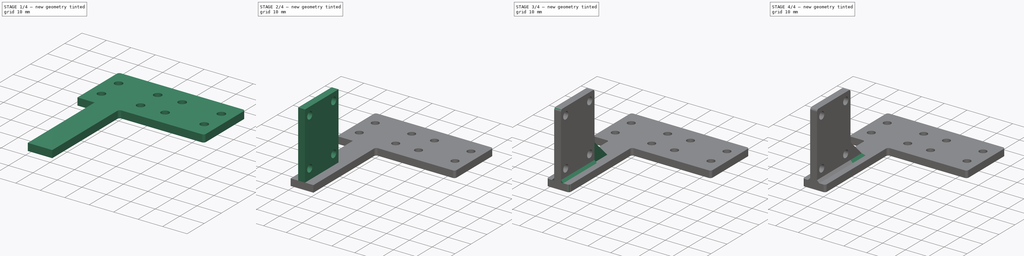
[diagram: build sequence overview — one tinted view per stage of 4, left to right]
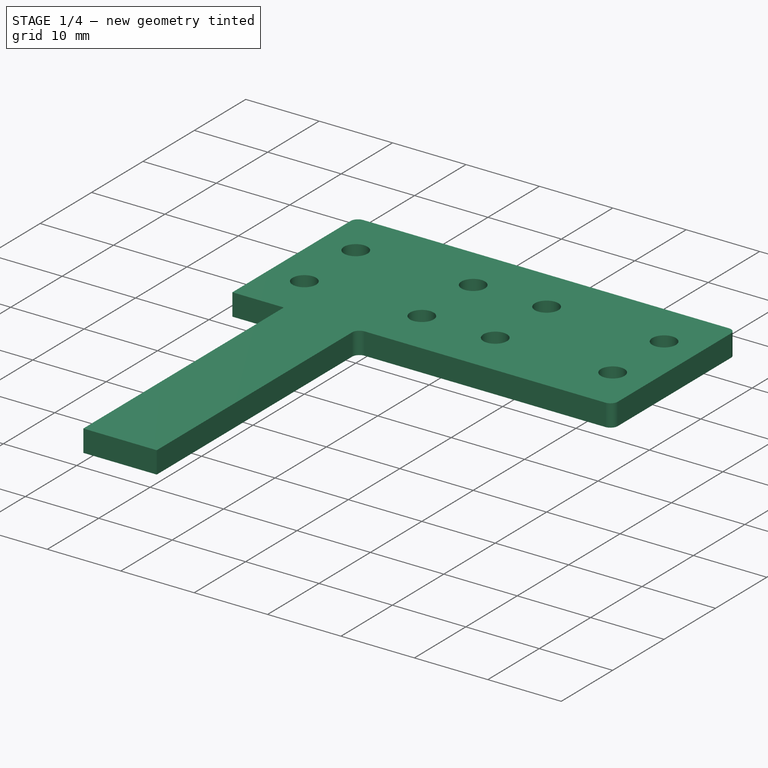
[diagram: stage 1 of 4 — iso view after this stage's code; geometry added in this stage tinted green]
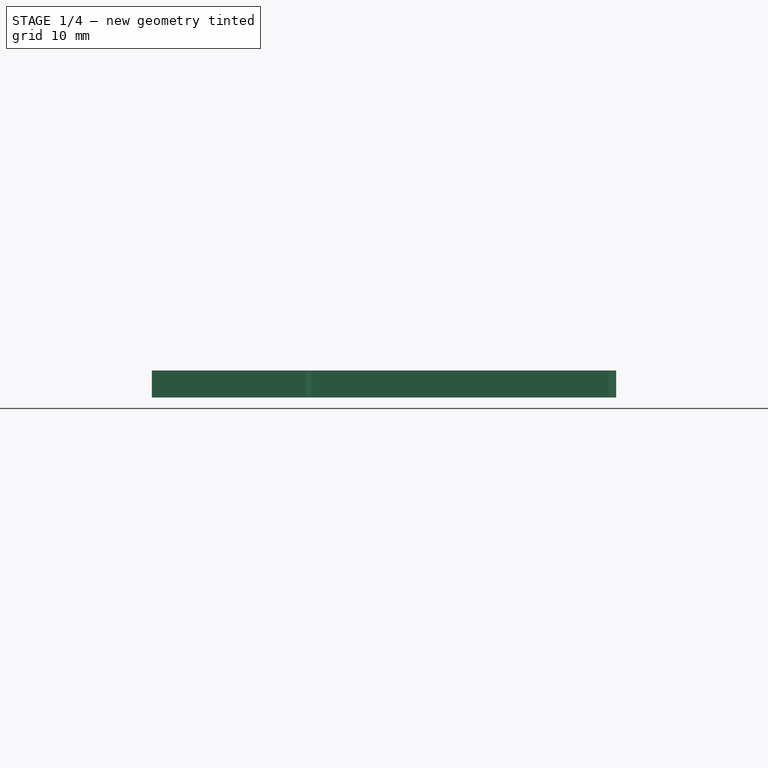
[diagram: stage 1 of 4 — front view after this stage's code; geometry added in this stage tinted green]
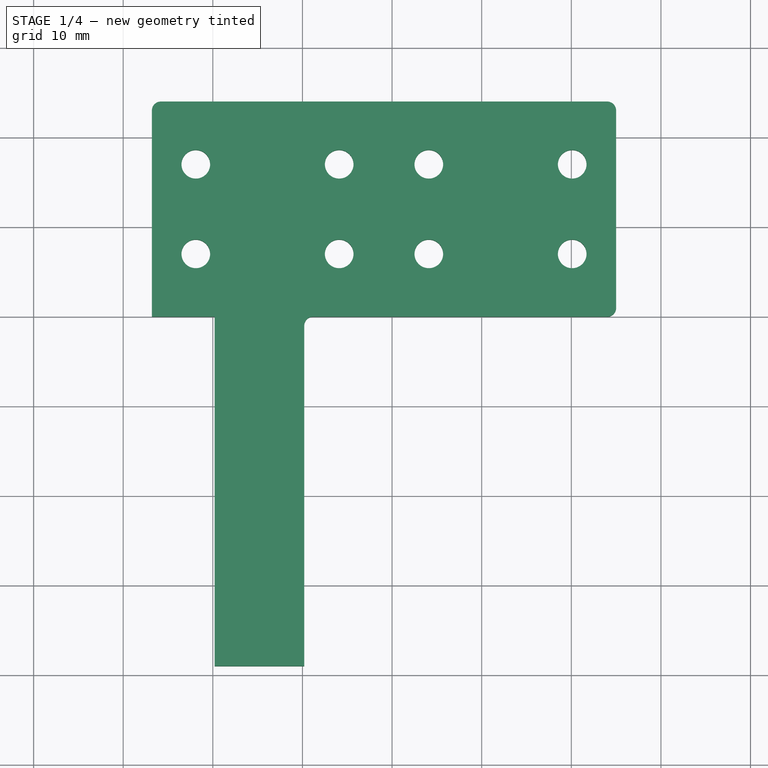
[diagram: stage 1 of 4 — top view after this stage's code; geometry added in this stage tinted green]
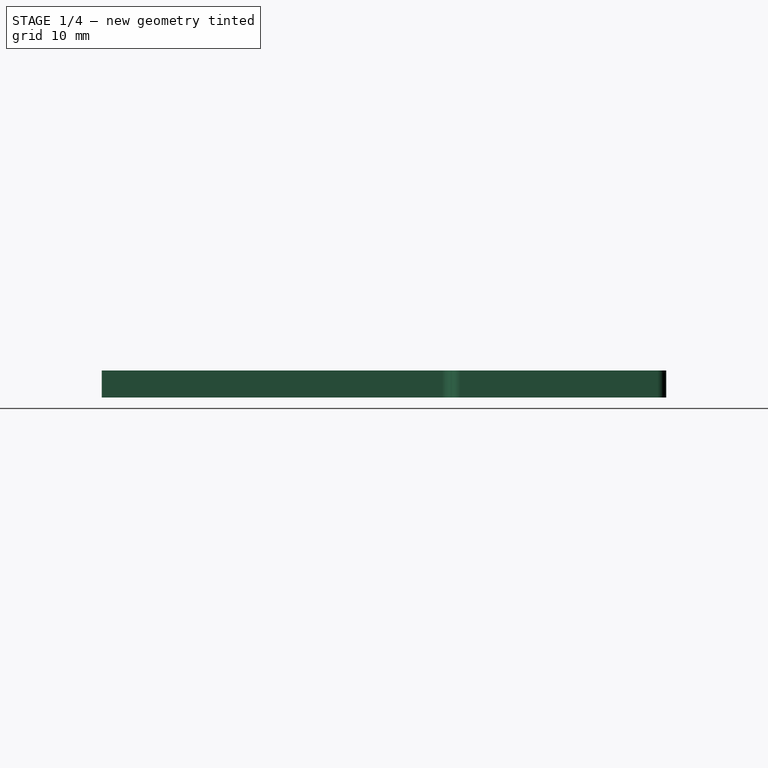
[diagram: stage 1 of 4 — right view after this stage's code; geometry added in this stage tinted green]
FCSTD DOCUMENT  (FreeCAD 0.19R24276 (Git))
Label: Clamp_holder_part4
License: All rights reserved
LicenseURL: http://en.wikipedia.org/wiki/All_rights_reserved
objects: Sketcher::SketchObject×5, PartDesign::Pad×4, PartDesign::Fillet×2, PartDesign::Chamfer×2, PartDesign::Pocket×1, PartDesign::Body×1
note: 24 computed .brp shape members not serialized (recipe doc carries the construction recipe); baked Part::Feature solids carry a one-line shape summary decoded from their .brp

FEATURE [Sketcher::SketchObject] Sketch
  FullyConstrained = false
  MapMode = 5
  Support = -> [XY_Plane]
  sketch-geometry (29):
    g0: LineSegment StartX=0 StartY=0 StartZ=0 EndX=25 EndY=0 EndZ=0
    g1: LineSegment StartX=25 StartY=0 StartZ=0 EndX=25 EndY=24 EndZ=0
    g2: LineSegment StartX=25 StartY=24 StartZ=0 EndX=0 EndY=24 EndZ=0
    g3: LineSegment StartX=0 StartY=24 StartZ=0 EndX=0 EndY=0 EndZ=0
    g4: Circle CenterX=4.1 CenterY=17 CenterZ=0 NormalX=0 NormalY=0 NormalZ=1 AngleXU=0 Radius=1.6
    g5: Circle CenterX=20.1 CenterY=17 CenterZ=0 NormalX=0 NormalY=0 NormalZ=1 AngleXU=0 Radius=1.6
    g6: Circle CenterX=4.1 CenterY=7 CenterZ=0 NormalX=0 NormalY=0 NormalZ=1 AngleXU=0 Radius=1.6
    g7: Circle CenterX=20.1 CenterY=7 CenterZ=0 NormalX=0 NormalY=0 NormalZ=1 AngleXU=0 Radius=1.6
    g8: LineSegment StartX=0 StartY=0 StartZ=0 EndX=0 EndY=24 EndZ=0
    g9: LineSegment StartX=-1.8 StartY=0 StartZ=0 EndX=-26.8 EndY=0 EndZ=0
    g10: LineSegment StartX=-26.8 StartY=0 StartZ=0 EndX=-26.8 EndY=24 EndZ=0
    g11: LineSegment StartX=-26.8 StartY=24 StartZ=0 EndX=-1.8 EndY=24 EndZ=0
    g12: LineSegment StartX=-1.8 StartY=24 StartZ=0 EndX=-1.8 EndY=0 EndZ=0
    g13: Circle CenterX=-5.9 CenterY=17 CenterZ=0 NormalX=0 NormalY=0 NormalZ=1 AngleXU=0 Radius=1.6
    g14: Circle CenterX=-21.9 CenterY=17 CenterZ=0 NormalX=0 NormalY=0 NormalZ=1 AngleXU=0 Radius=1.6
    g15: Circle CenterX=-5.9 CenterY=7 CenterZ=0 NormalX=0 NormalY=0 NormalZ=1 AngleXU=0 Radius=1.6
    g16: Circle CenterX=-21.9 CenterY=7 CenterZ=0 NormalX=0 NormalY=0 NormalZ=1 AngleXU=0 Radius=1.6
    g17: LineSegment StartX=-26.8 StartY=24 StartZ=0 EndX=25 EndY=24 EndZ=0
    g18: LineSegment StartX=25 StartY=0 StartZ=0 EndX=-26.8 EndY=0 EndZ=0
    g19: LineSegment StartX=-0.9 StartY=24 StartZ=0 EndX=-0.9 EndY=7 EndZ=0
    g20: LineSegment StartX=-26.8 StartY=0 StartZ=0 EndX=-9.8 EndY=0 EndZ=0
    g21: LineSegment StartX=-9.8 StartY=0 StartZ=0 EndX=-9.8 EndY=-39 EndZ=0
    g22: LineSegment StartX=-9.8 StartY=-39 StartZ=0 EndX=-26.8 EndY=-39 EndZ=0
    g23: LineSegment StartX=-26.8 StartY=-39 StartZ=0 EndX=-26.8 EndY=0 EndZ=0
    g24: LineSegment StartX=-19.8 StartY=-39 StartZ=0 EndX=-19.8 EndY=0 EndZ=0
    g25: LineSegment StartX=-9.8 StartY=0 StartZ=0 EndX=25 EndY=0 EndZ=0
    g26: LineSegment StartX=-9.8 StartY=-39 StartZ=0 EndX=-19.8 EndY=-39 EndZ=0
    g27: LineSegment StartX=-19.8 StartY=-39 StartZ=0 EndX=-19.8 EndY=0 EndZ=0
    g28: LineSegment StartX=-26.8 StartY=0 StartZ=0 EndX=-19.8 EndY=0 EndZ=0
  constraints (78):
    c: Coincident(g0,g1)
    c: Coincident(g1,g2)
    c: Coincident(g2,g3)
    c: Coincident(g3,g0)
    c: Horizontal(g0)
    c: Horizontal(g2)
    c: Vertical(g1)
    c: Vertical(g3)
    c: Coincident(g0,g-1)
    c: DistanceY(g3,g3) = 24
    c: DistanceX(g0,g0) = 25
    c: Equal(g6,g4)
    c: Equal(g6,g7)
    c: Equal(g6,g5)
    c: Vertical(g4,g6)
    c: DistanceY(g-1,g6) = 7
    c: DistanceY(g6,g4) = 10
    c: Horizontal(g6,g7)
    c: Vertical(g5,g7)
    c: DistanceY(g7,g5) = 10
    c: DistanceX(g6,g7) = 16
    c: DistanceX(g-1,g6) = 4.1
    c: Vertical(g8)
    c: Coincident(g9,g10)
    c: Coincident(g10,g11)
    c: Coincident(g11,g12)
    c: Coincident(g12,g9)
    c: Horizontal(g9)
    c: Horizontal(g11)
    c: Vertical(g10)
    c: Vertical(g12)
    c: Equal(g15,g13)
    c: Equal(g15,g16)
    c: DistanceX(g15,g9) = 4.1
    c: Vertical(g15,g13)
    c: Vertical(g16,g14)
    c: Horizontal(g16,g15)
    c: Horizontal(g15,g6)
    c: Horizontal(g14,g13)
    c: Horizontal(g13,g4)
    c: Equal(g13,g14)
    c: DistanceX(g15,g6) = 10
    c: DistanceX(g16,g15) = 16
    c: DistanceX(g9,g9) = 25
    c: Horizontal(g9,g0)
    c: Horizontal(g11,g2)
    c: Equal(g15,g6)
    c: Diameter(g6) = 3.2
    c: Coincident(g17,g10)
    c: Coincident(g17,g1)
    c: Coincident(g18,g1)
    c: Coincident(g18,g10)
    c: Vertical(g19)
    c: Symmetric(g15,g6,g19)
    c: PointOnObject(g19,g17)
    c: Coincident(g20,g21)
    c: Coincident(g21,g22)
    c: Coincident(g22,g23)
    c: Coincident(g23,g20)
    c: Horizontal(g20)
    c: Horizontal(g22)
    c: Vertical(g21)
    c: Vertical(g23)
    c: Coincident(g20,g10)
    c: DistanceY(g22,g10) = 63
    c: Vertical(g24)
    c: PointOnObject(g24,g22)
    c: DistanceX(g22,g24) = 7
    c: DistanceX(g24,g21) = 10
    c: PointOnObject(g24,g9)
    c: Coincident(g25,g21)
    c: Coincident(g26,g21)
    c: Coincident(g27,g24)
    c: Coincident(g28,g10)
    c: Coincident(g28,g24)
    c: Coincident(g28,g27)
    c: Coincident(g25,g1)
    c: Coincident(g26,g27)
FEATURE [PartDesign::Pad] Pad
  Direction = (1,1,1)
  Length = 3
  Length2 = 100
  Profile = -> Sketch
  Type = 0
FEATURE [PartDesign::Fillet] Fillet
  Base = -> Pad [Edge1,Edge2,Edge5,Edge8]
  BaseFeature = -> Pad
  Radius = 1
  SupportTransform = false
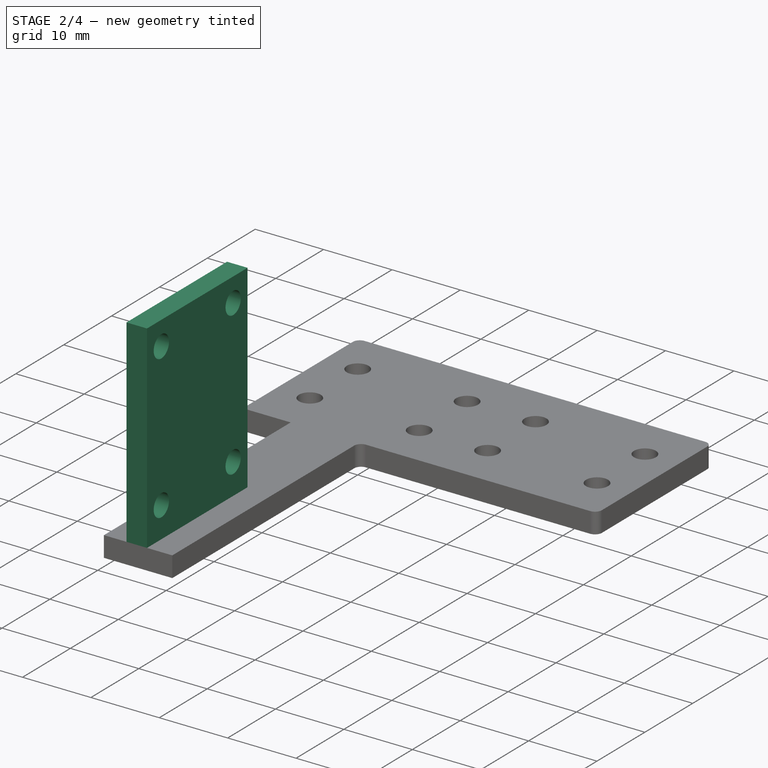
[diagram: stage 2 of 4 — iso view after this stage's code; geometry added in this stage tinted green]
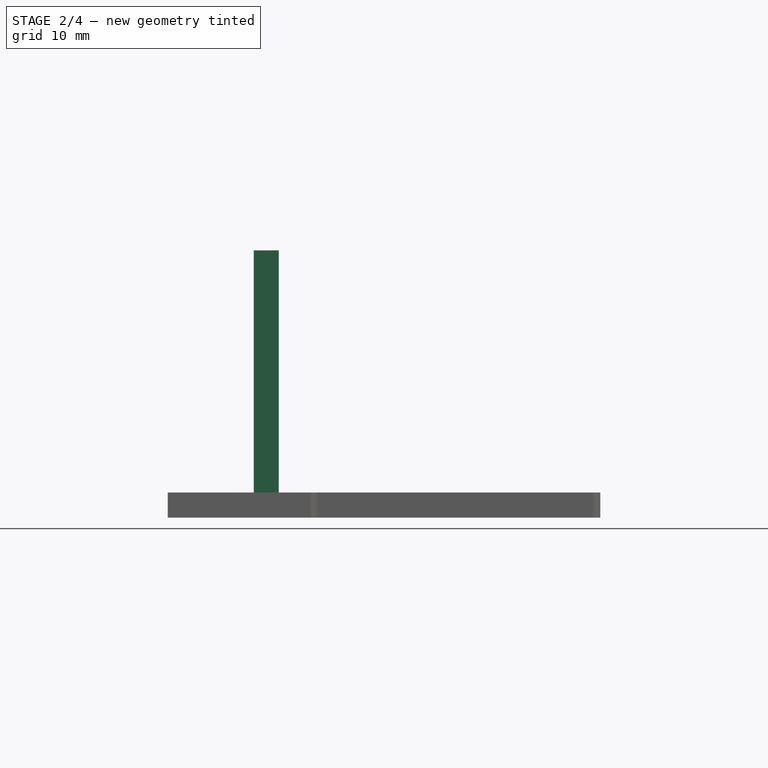
[diagram: stage 2 of 4 — front view after this stage's code; geometry added in this stage tinted green]
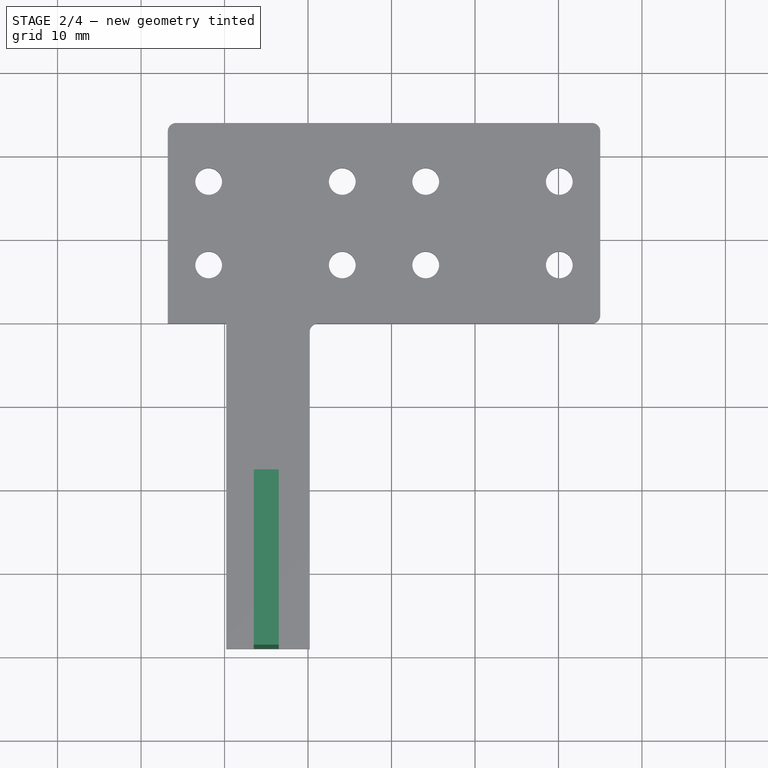
[diagram: stage 2 of 4 — top view after this stage's code; geometry added in this stage tinted green]
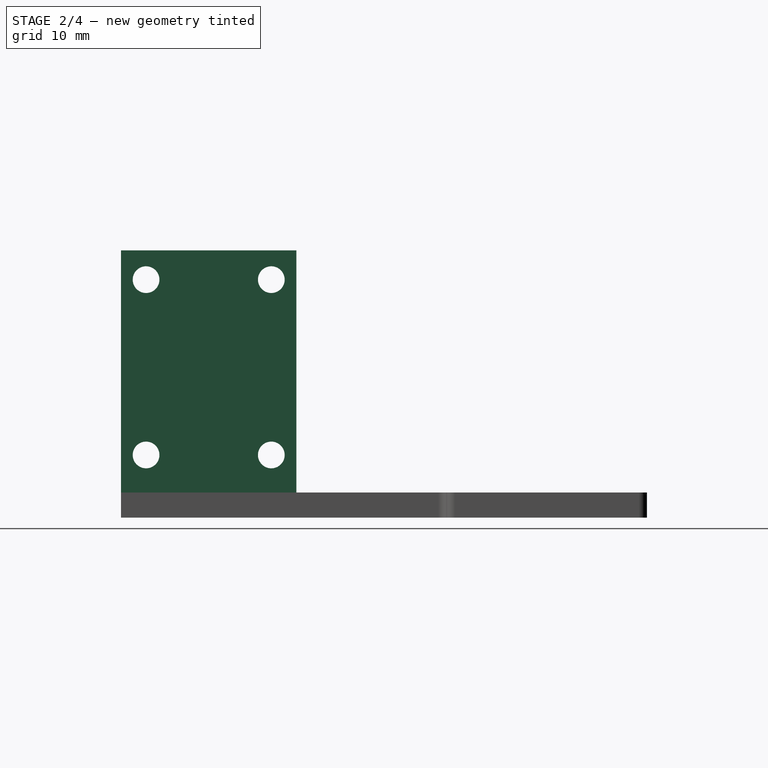
[diagram: stage 2 of 4 — right view after this stage's code; geometry added in this stage tinted green]
FEATURE [Sketcher::SketchObject] Sketch001
  FullyConstrained = true
  MapMode = 5
  Placement = pos=(0,0,3) rot=(0,0,1;0rad)
  Support = -> [Fillet]
  sketch-geometry (4):
    g0: LineSegment StartX=-13.5 StartY=-39 StartZ=0 EndX=-16.5 EndY=-39 EndZ=0
    g1: LineSegment StartX=-16.5 StartY=-39 StartZ=0 EndX=-16.5 EndY=-18 EndZ=0
    g2: LineSegment StartX=-16.5 StartY=-18 StartZ=0 EndX=-13.5 EndY=-18 EndZ=0
    g3: LineSegment StartX=-13.5 StartY=-18 StartZ=0 EndX=-13.5 EndY=-39 EndZ=0
  constraints (12):
    c: Coincident(g0,g1)
    c: Coincident(g1,g2)
    c: Coincident(g2,g3)
    c: Coincident(g3,g0)
    c: Horizontal(g0)
    c: Vertical(g1)
    c: Vertical(g3)
    c: DistanceY(g0,g-1) = 39
    c: DistanceX(g0,g-1) = 13.5
    c: Horizontal(g2)
    c: DistanceY(g0,g2) = 21
    c: DistanceX(g0,g0) = 3
FEATURE [PartDesign::Pad] Pad001
  BaseFeature = -> Fillet
  Direction = (1,1,1)
  Length = 29
  Length2 = 100
  Profile = -> Sketch001
  Type = 0
FEATURE [Sketcher::SketchObject] Sketch002
  FullyConstrained = true
  MapMode = 5
  Placement = pos=(-16.5,0,0) rot=(0.57735,-0.57735,-0.57735;2.0944rad)
  Support = -> [Pad001]
  sketch-geometry (8):
    g0: LineSegment StartX=39 StartY=32 StartZ=0 EndX=18 EndY=32 EndZ=0
    g1: LineSegment StartX=18 StartY=32 StartZ=0 EndX=18 EndY=4 EndZ=0
    g2: LineSegment StartX=18 StartY=4 StartZ=0 EndX=39 EndY=4 EndZ=0
    g3: LineSegment StartX=39 StartY=4 StartZ=0 EndX=39 EndY=32 EndZ=0
    g4: Circle CenterX=36 CenterY=7.5 CenterZ=0 NormalX=0 NormalY=0 NormalZ=1 AngleXU=0 Radius=1.6
    g5: Circle CenterX=21 CenterY=7.5 CenterZ=0 NormalX=0 NormalY=0 NormalZ=1 AngleXU=0 Radius=1.6
    g6: Circle CenterX=21 CenterY=28.5 CenterZ=0 NormalX=0 NormalY=0 NormalZ=1 AngleXU=0 Radius=1.6
    g7: Circle CenterX=36 CenterY=28.5 CenterZ=0 NormalX=0 NormalY=0 NormalZ=1 AngleXU=0 Radius=1.6
  constraints (24):
    c: Coincident(g0,g1)
    c: Coincident(g1,g2)
    c: Coincident(g2,g3)
    c: Coincident(g3,g0)
    c: Horizontal(g0)
    c: Horizontal(g2)
    c: Vertical(g1)
    c: Vertical(g3)
    c: DistanceX(g-1,g2) = 39
    c: DistanceY(g1,g0) = 28
    c: DistanceX(g0,g0) = 21
    c: DistanceY(g-1,g2) = 4
    c: Horizontal(g4,g5)
    c: Horizontal(g6,g7)
    c: Vertical(g5,g6)
    c: Vertical(g4,g7)
    c: Diameter(g4) = 3.2
    c: Equal(g4,g5)
    c: Equal(g4,g6)
    c: Equal(g4,g7)
    c: DistanceY(g4,g7) = 21
    c: DistanceY(g1,g5) = 3.5
    c: DistanceX(g4,g2) = 3
    c: DistanceX(g5,g2) = 18
FEATURE [PartDesign::Pocket] Pocket
  BaseFeature = -> Pad001
  Length = 5
  Length2 = 100
  Profile = -> Sketch002
  Type = 1
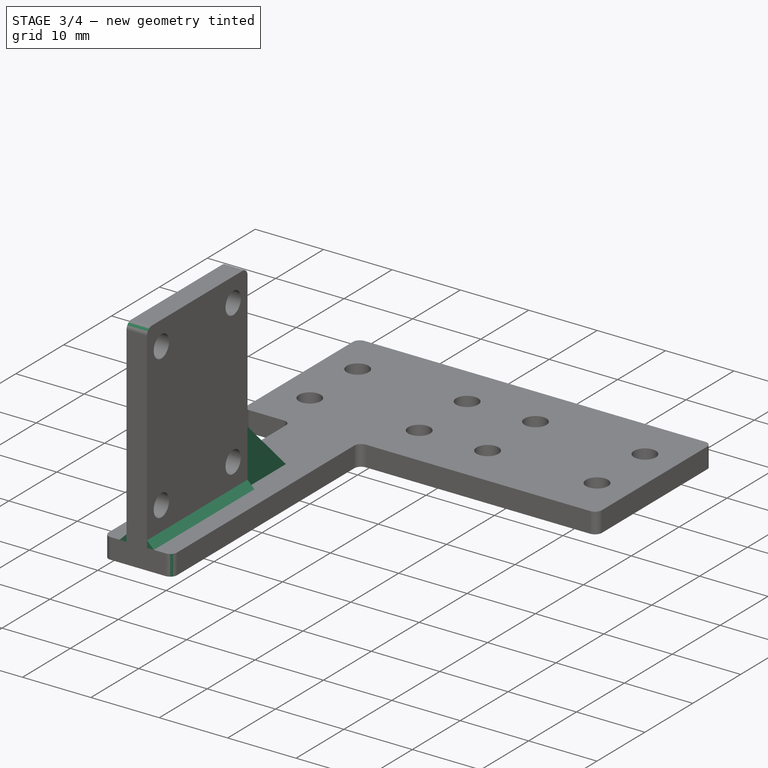
[diagram: stage 3 of 4 — iso view after this stage's code; geometry added in this stage tinted green]
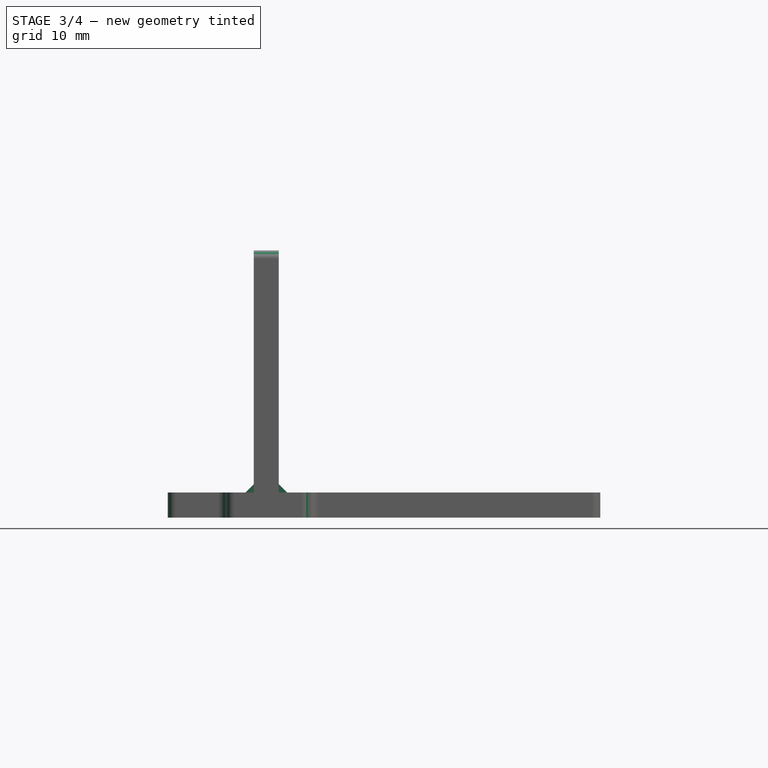
[diagram: stage 3 of 4 — front view after this stage's code; geometry added in this stage tinted green]
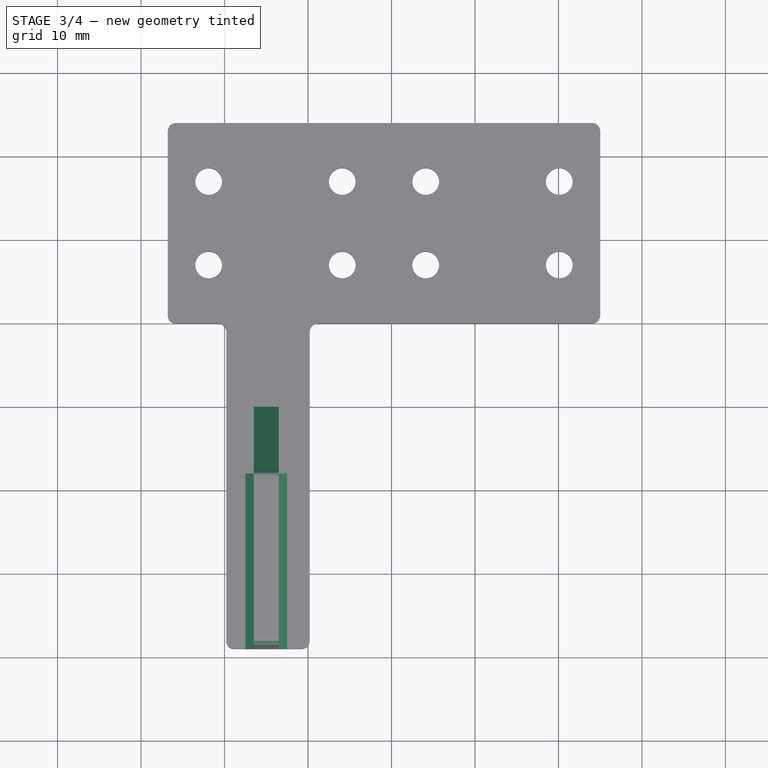
[diagram: stage 3 of 4 — top view after this stage's code; geometry added in this stage tinted green]
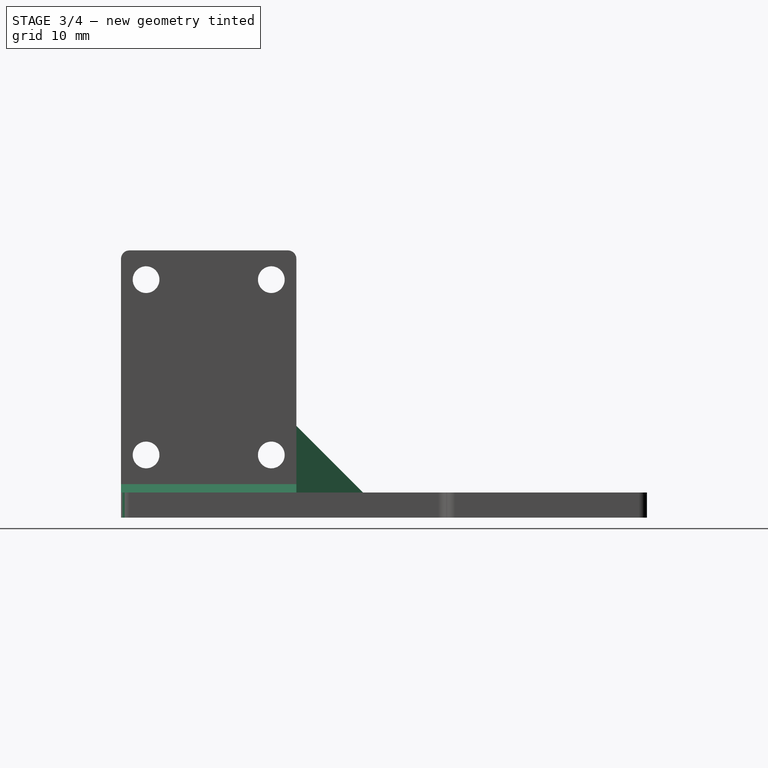
[diagram: stage 3 of 4 — right view after this stage's code; geometry added in this stage tinted green]
FEATURE [Sketcher::SketchObject] Sketch003
  FullyConstrained = true
  MapMode = 5
  Placement = pos=(5.54e-14,-39,0) rot=(1,0,0;1.5708rad)
  Support = -> [Pocket]
  sketch-geometry (6):
    g0: LineSegment StartX=-13.5 StartY=3 StartZ=0 EndX=-12.5 EndY=3 EndZ=0
    g1: LineSegment StartX=-13.5 StartY=3 StartZ=0 EndX=-13.5 EndY=4 EndZ=0
    g2: LineSegment StartX=-13.5 StartY=4 StartZ=0 EndX=-12.5 EndY=3 EndZ=0
    g3: LineSegment StartX=-16.5 StartY=4 StartZ=0 EndX=-17.5 EndY=3 EndZ=0
    g4: LineSegment StartX=-17.5 StartY=3 StartZ=0 EndX=-16.5 EndY=3 EndZ=0
    g5: LineSegment StartX=-16.5 StartY=3 StartZ=0 EndX=-16.5 EndY=4 EndZ=0
  constraints (18):
    c: Horizontal(g0)
    c: Coincident(g1,g0)
    c: Coincident(g2,g0)
    c: Coincident(g4,g3)
    c: Horizontal(g4)
    c: Coincident(g5,g3)
    c: Vertical(g5)
    c: Horizontal(g0,g4)
    c: DistanceY(g-1,g0) = 3
    c: DistanceY(g0,g1) = 1
    c: Coincident(g1,g2)
    c: Vertical(g1)
    c: Horizontal(g3,g1)
    c: Coincident(g5,g4)
    c: DistanceX(g0,g-1) = 13.5
    c: DistanceX(g0,g0) = 1
    c: DistanceX(g4,g4) = 1
    c: DistanceX(g4,g0) = 3
FEATURE [PartDesign::Pad] Pad002
  BaseFeature = -> Pocket
  Direction = (1,1,1)
  Length = 21
  Length2 = 100
  Profile = -> Sketch003
  Reversed = true
  Type = 0
FEATURE [Sketcher::SketchObject] Sketch004
  FullyConstrained = true
  MapMode = 5
  Placement = pos=(-16.5,0,0) rot=(0.57735,-0.57735,-0.57735;2.0944rad)
  Support = -> [Pad002]
  sketch-geometry (3):
    g0: LineSegment StartX=18 StartY=3 StartZ=0 EndX=10 EndY=3 EndZ=0
    g1: LineSegment StartX=10 StartY=3 StartZ=0 EndX=18 EndY=11 EndZ=0
    g2: LineSegment StartX=18 StartY=11 StartZ=0 EndX=18 EndY=3 EndZ=0
  constraints (9):
    c: Horizontal(g0)
    c: Coincident(g1,g0)
    c: Coincident(g2,g1)
    c: Coincident(g2,g0)
    c: Vertical(g2)
    c: DistanceX(g-1,g0) = 18
    c: DistanceX(g0,g0) = 8
    c: DistanceY(g2,g2) = 8
    c: DistanceY(g-1,g0) = 3
FEATURE [PartDesign::Pad] Pad003
  BaseFeature = -> Pad002
  Direction = (1,1,1)
  Length = 3
  Length2 = 100
  Profile = -> Sketch004
  Reversed = true
  Type = 0
FEATURE [PartDesign::Fillet] Fillet001
  Base = -> Pad003 [Edge96,Edge89,Edge62,Edge55,Edge53,Edge60]
  BaseFeature = -> Pad003
  Radius = 1
  SupportTransform = false
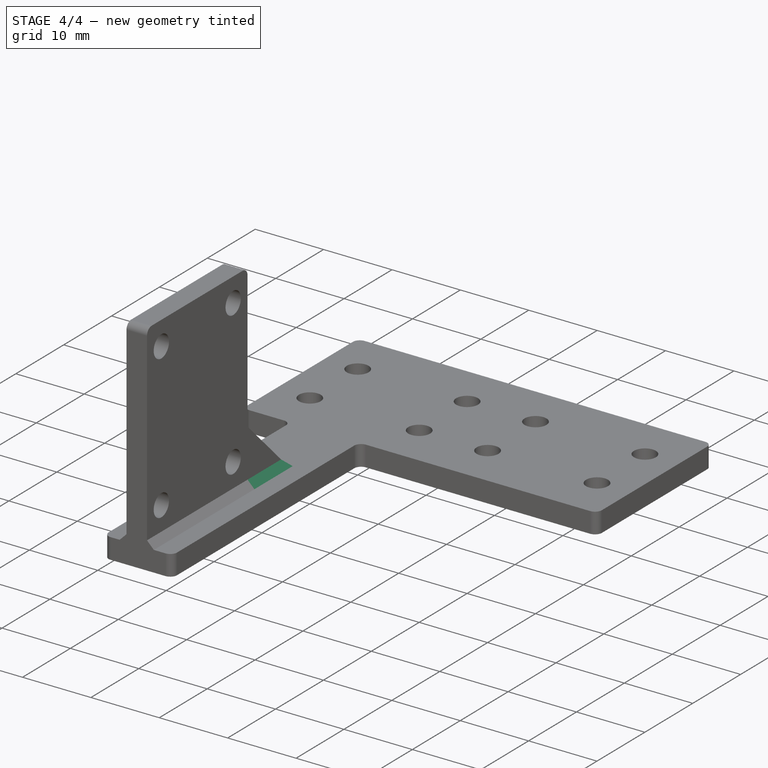
[diagram: stage 4 of 4 — iso view after this stage's code; geometry added in this stage tinted green]
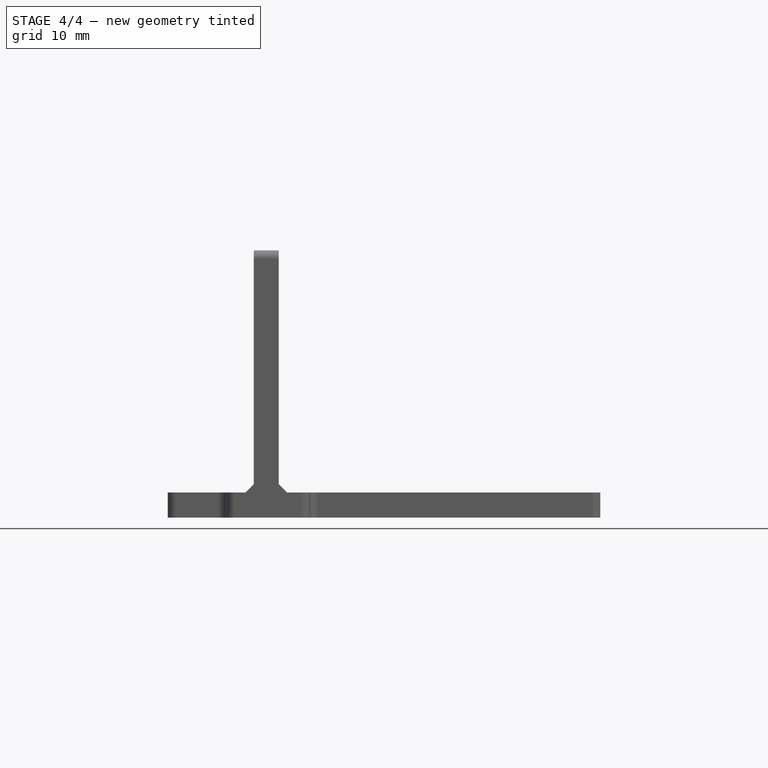
[diagram: stage 4 of 4 — front view after this stage's code; geometry added in this stage tinted green]
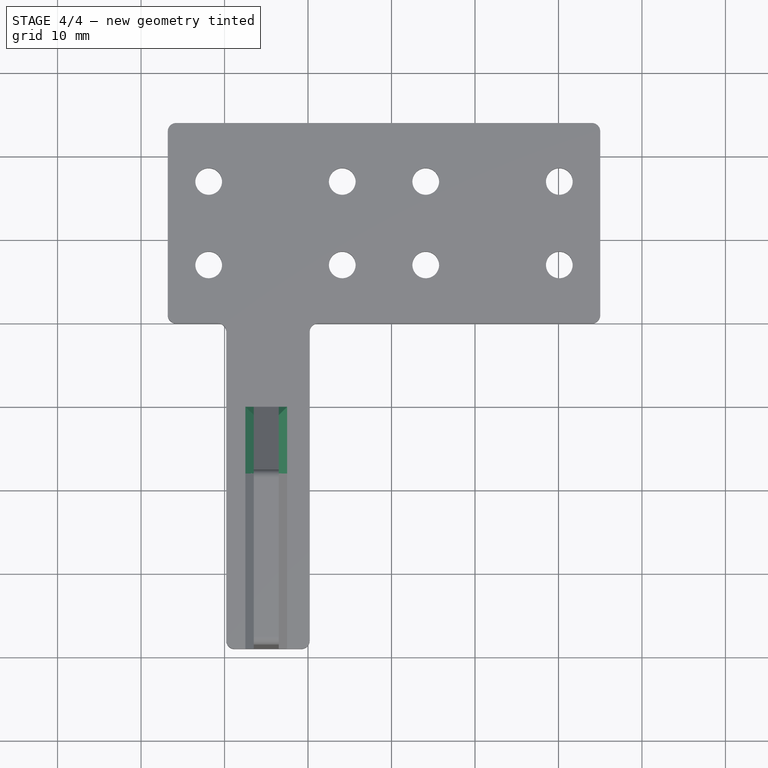
[diagram: stage 4 of 4 — top view after this stage's code; geometry added in this stage tinted green]
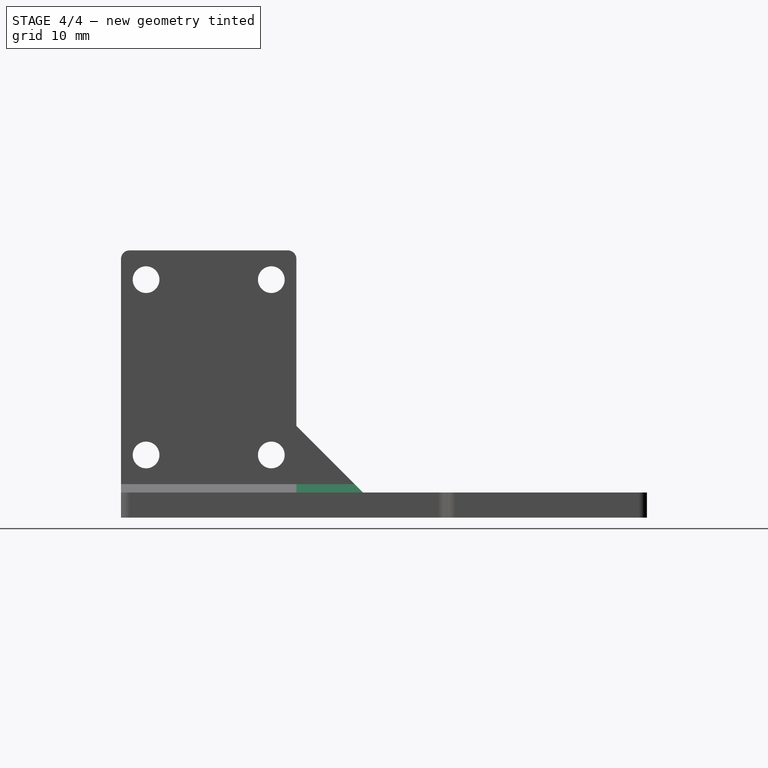
[diagram: stage 4 of 4 — right view after this stage's code; geometry added in this stage tinted green]
FEATURE [PartDesign::Chamfer] Chamfer
  Angle = 45
  Base = -> Fillet001 [Edge81]
  BaseFeature = -> Fillet001
  ChamferType = 0
  FlipDirection = false
  Size = 1
  Size2 = 1
  SupportTransform = false
FEATURE [PartDesign::Chamfer] Chamfer001
  Angle = 45
  Base = -> Chamfer [Edge4]
  BaseFeature = -> Chamfer
  ChamferType = 0
  FlipDirection = false
  Size = 1
  Size2 = 1
  SupportTransform = false
FEATURE [PartDesign::Body] Body
  Group = -> [Sketch,Pad,Fillet,Sketch001,Pad001,Sketch002,Pocket,Sketch003,Pad002,Sketch004,Pad003,Fillet001,Chamfer,Chamfer001]
  Origin = -> Origin
  Tip = -> Chamfer001
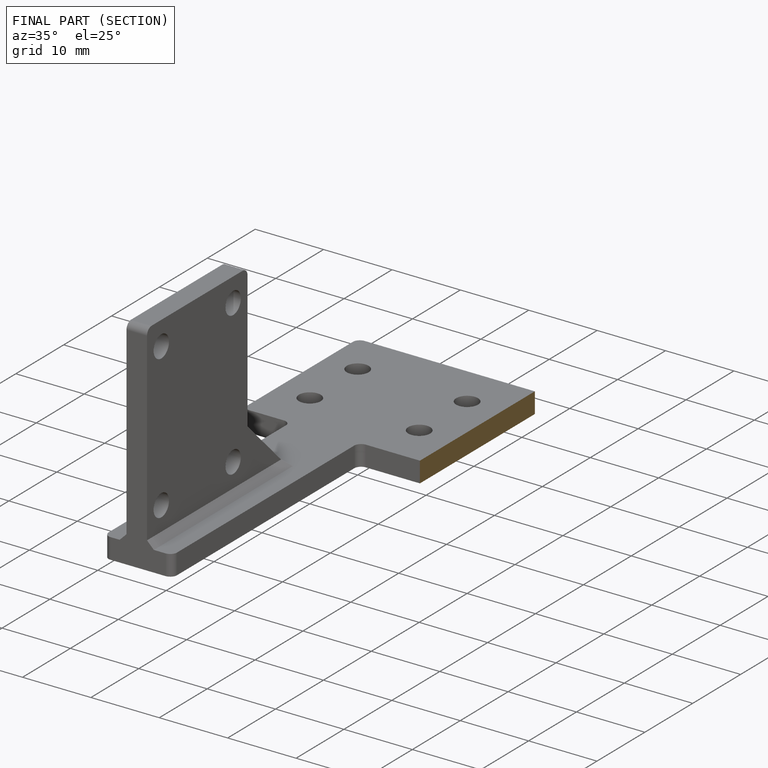
[diagram: finished part — half-section view (interior)]
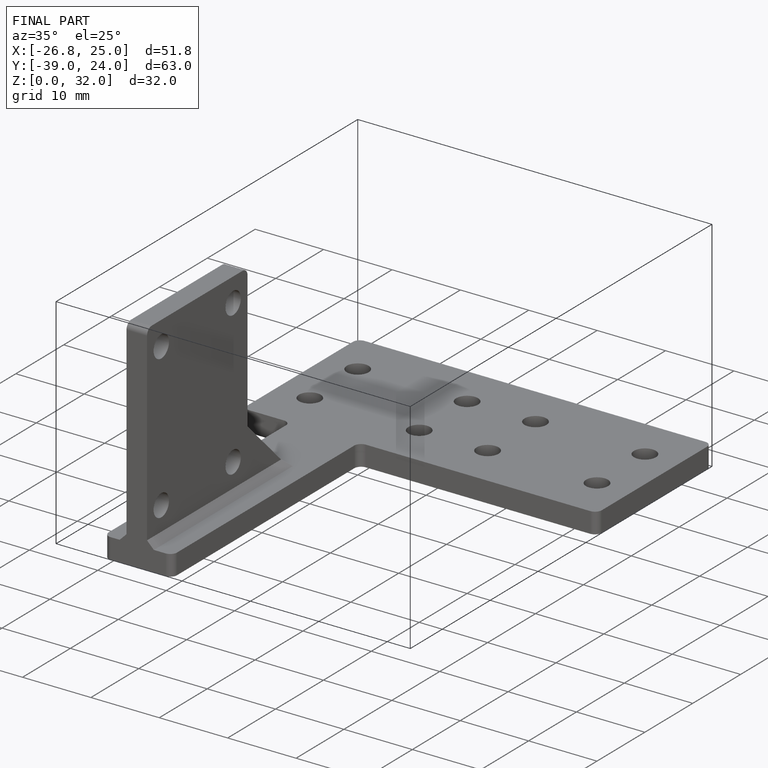
[diagram: finished part — iso view with bounding-box wireframe]
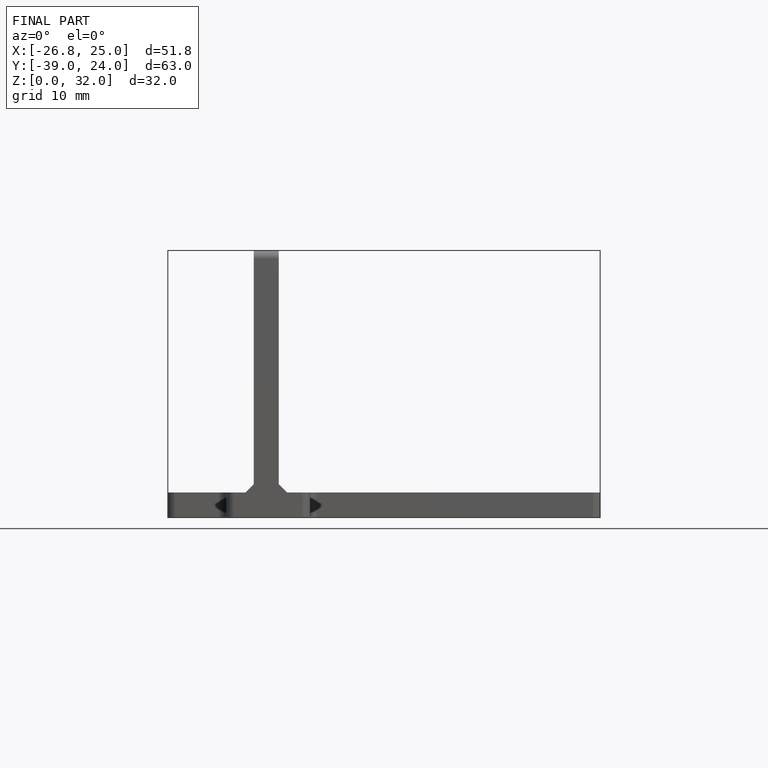
[diagram: finished part — front view with bounding-box wireframe]
